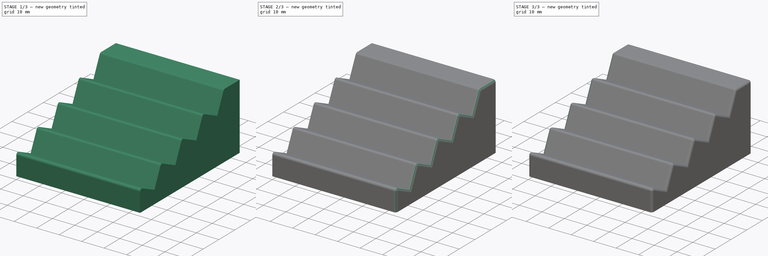
[diagram: build sequence overview — one tinted view per stage of 3, left to right]
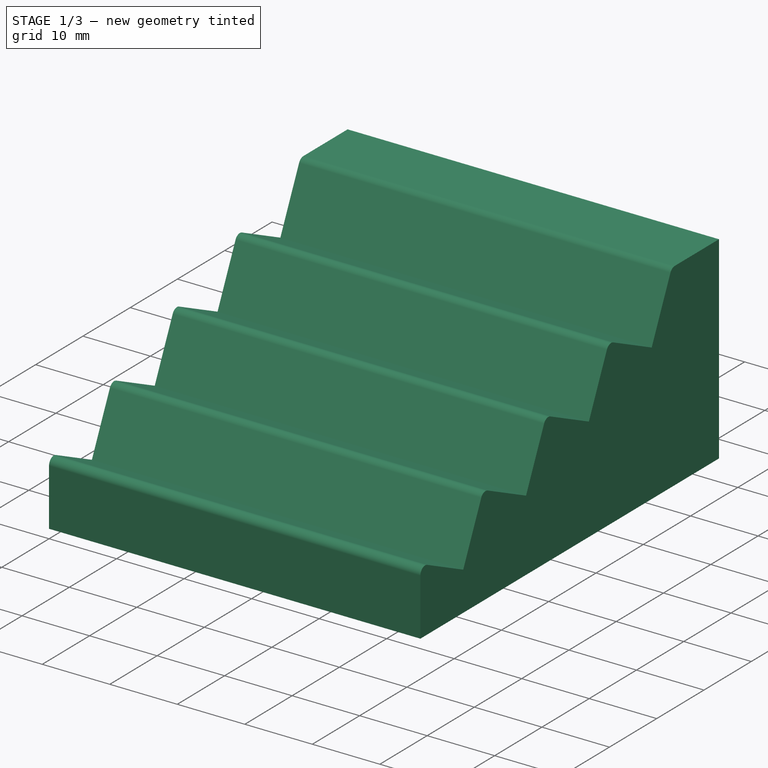
[diagram: stage 1 of 3 — iso view after this stage's code; geometry added in this stage tinted green]
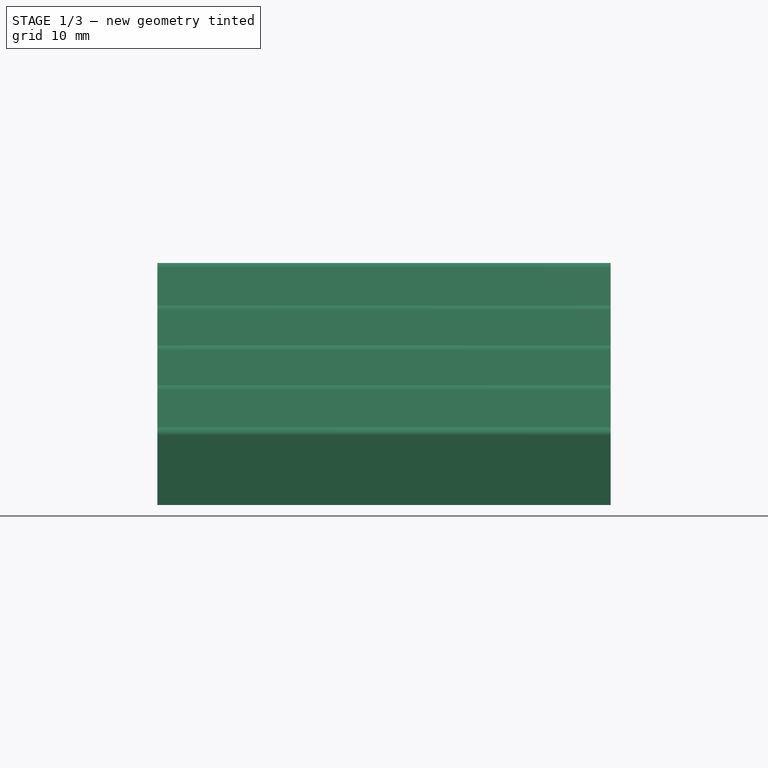
[diagram: stage 1 of 3 — front view after this stage's code; geometry added in this stage tinted green]
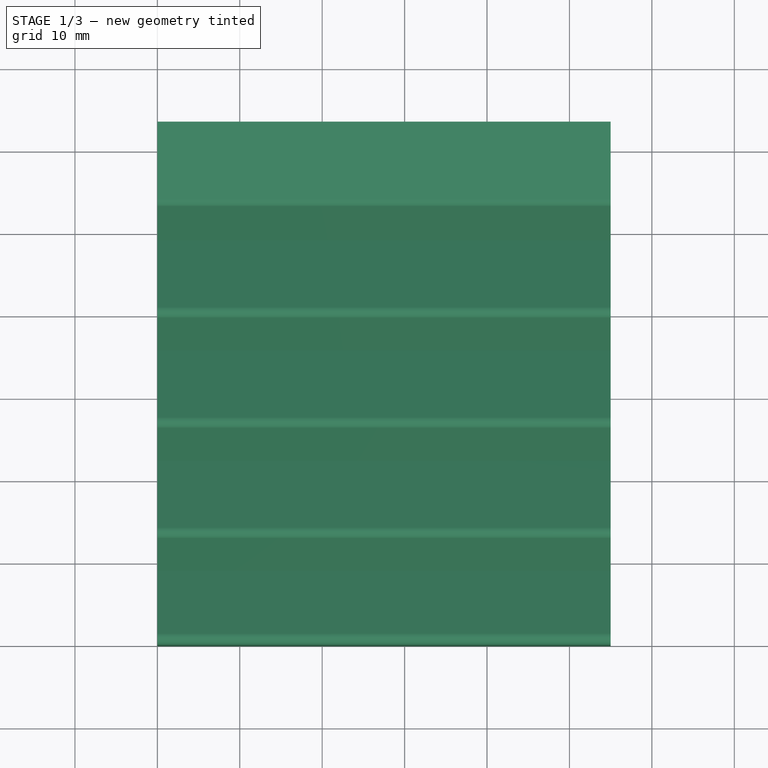
[diagram: stage 1 of 3 — top view after this stage's code; geometry added in this stage tinted green]
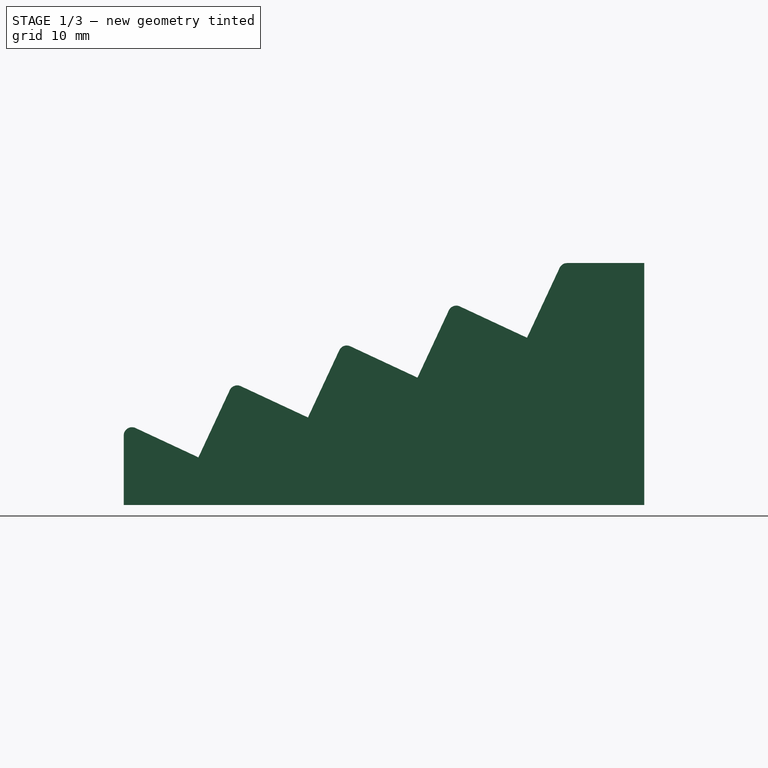
[diagram: stage 1 of 3 — right view after this stage's code; geometry added in this stage tinted green]
FCSTD DOCUMENT  (FreeCAD 1.1R)
Label: stand
License: All rights reserved
LicenseURL: https://en.wikipedia.org/wiki/All_rights_reserved
objects: PartDesign::Fillet×4, Sketcher::SketchObject×1, PartDesign::Pad×1, App::Point×1, PartDesign::Body×1
note: 18 computed .brp shape members not serialized (recipe doc carries the construction recipe); baked Part::Feature solids carry a one-line shape summary decoded from their .brp

FEATURE [Sketcher::SketchObject] Sketch
  ArcFitTolerance = 1e-06
  AttachmentSupport = -> [YZ_Plane]
  ExternalTypes = [0]
  FullyConstrained = true
  MakeInternals = false
  MapMode = 5
  Placement = pos=(0,0,0) rot=(0.57735,0.57735,0.57735;2.0944rad)
  sketch-geometry (12):
    g0: LineSegment StartX=0 StartY=0 StartZ=0 EndX=63.157 EndY=0 EndZ=0
    g1: LineSegment StartX=63.157 StartY=0 StartZ=0 EndX=63.157 EndY=29.3476 EndZ=0
    g2: LineSegment StartX=63.157 StartY=29.3476 StartZ=0 EndX=53.157 EndY=29.3476 EndZ=0
    g3: LineSegment StartX=53.157 StartY=29.3476 StartZ=0 EndX=48.9309 EndY=20.2845 EndZ=0
    g4: LineSegment StartX=48.9309 StartY=20.2845 StartZ=0 EndX=39.8678 EndY=24.5107 EndZ=0
    g5: LineSegment StartX=39.8678 StartY=24.5107 StartZ=0 EndX=35.6416 EndY=15.4476 EndZ=0
    g6: LineSegment StartX=35.6416 StartY=15.4476 StartZ=0 EndX=26.5785 EndY=19.6738 EndZ=0
    g7: LineSegment StartX=26.5785 StartY=19.6738 StartZ=0 EndX=22.3523 EndY=10.6107 EndZ=0
    g8: LineSegment StartX=22.3523 StartY=10.6107 StartZ=0 EndX=13.2893 EndY=14.8369 EndZ=0
    g9: LineSegment StartX=13.2893 StartY=14.8369 StartZ=0 EndX=9.06308 EndY=5.77382 EndZ=0
    g10: LineSegment StartX=9.06308 StartY=5.77382 StartZ=0 EndX=0 EndY=10 EndZ=0
    g11: LineSegment StartX=0 StartY=10 StartZ=0 EndX=0 EndY=0 EndZ=0
  constraints (36):
    c: Horizontal(g0)
    c: Coincident(g0,g1)
    c: Vertical(g1)
    c: Coincident(g1,g2)
    c: Horizontal(g2)
    c: Coincident(g2,g3)
    c: Coincident(g3,g4)
    c: Coincident(g4,g5)
    c: Coincident(g5,g6)
    c: Coincident(g6,g7)
    c: Coincident(g7,g8)
    c: Parallel(g8,g4)
    c: Coincident(g8,g9)
    c: Coincident(g9,g10)
    c: Coincident(g10,g11)
    c: Coincident(g11,g0)
    c: Perpendicular(g9,g10)
    c: Perpendicular(g7,g8)
    c: Perpendicular(g5,g6)
    c: Perpendicular(g4,g5)
    c: Perpendicular(g8,g9)
    c: Equal(g10,g9)
    c: Equal(g9,g8)
    c: Equal(g8,g7)
    c: Equal(g7,g6)
    c: Equal(g6,g5)
    c: Equal(g5,g4)
    c: Distance(g10,g10) = 10
    c: Perpendicular(g0,g11)
    c: Perpendicular(g4,g3)
    c: Equal(g3,g4)
    c: Equal(g2,g11)
    c: Angle(g11,g10) = 1.13446
    c: PointOnObject(g0,g-1)
    c: PointOnObject(g0,g-2)
    c: Distance(g2,g2) = 10
FEATURE [PartDesign::Pad] Pad
  Direction = (1,0,0)
  Length = 55
  Length2 = 10
  Placement = pos=(0,0,0) rot=(1,1,1;2.0944rad)
  Profile = -> Sketch
  ReferenceAxis = -> Sketch [N_Axis]
  Refine = true
  SideType = 0
  Suppressed = false
  Type = 0
  Type2 = 0
FEATURE [App::Point] Origin001  label="Origin"
  Role = Origin
FEATURE [PartDesign::Fillet] Fillet
  Base = -> Pad [Edge26,Edge20,Edge14,Edge8,Edge32]
  BaseFeature = -> Pad
  Placement = pos=(0,0,0) rot=(1,1,1;2.0944rad)
  Radius = 1
  Refine = true
  SupportTransform = false
  Suppressed = false
  UseAllEdges = false
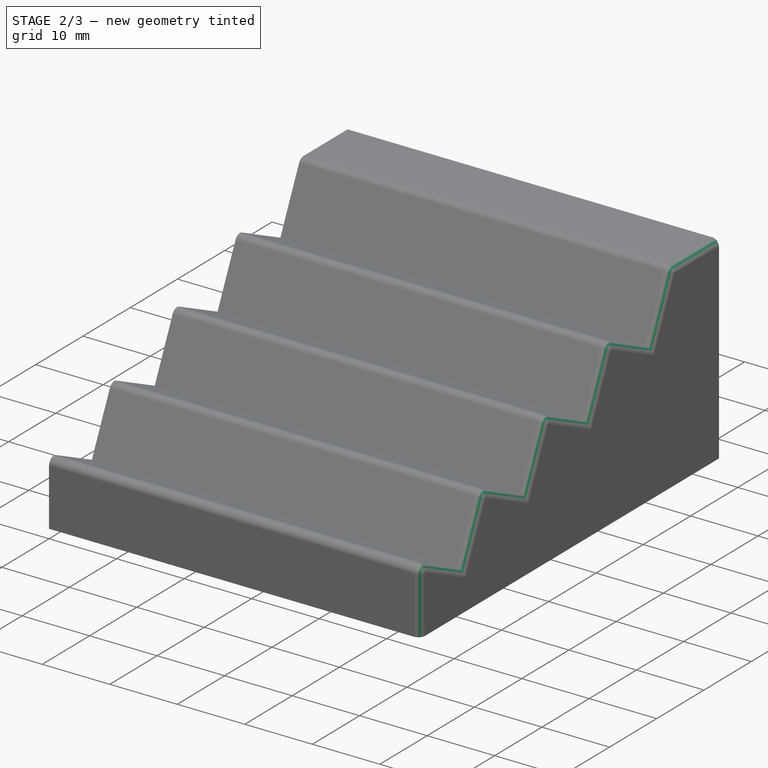
[diagram: stage 2 of 3 — iso view after this stage's code; geometry added in this stage tinted green]
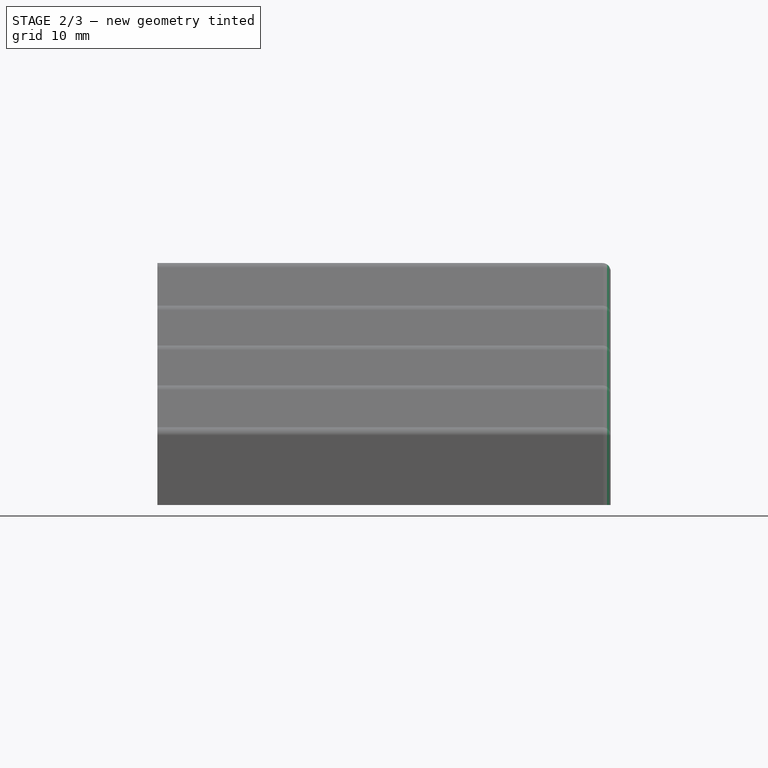
[diagram: stage 2 of 3 — front view after this stage's code; geometry added in this stage tinted green]
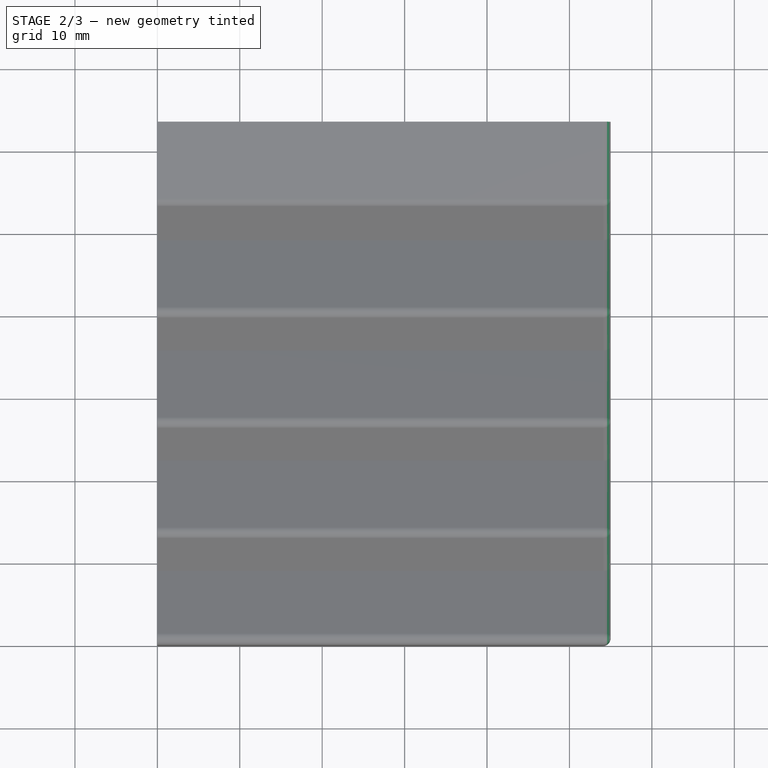
[diagram: stage 2 of 3 — top view after this stage's code; geometry added in this stage tinted green]
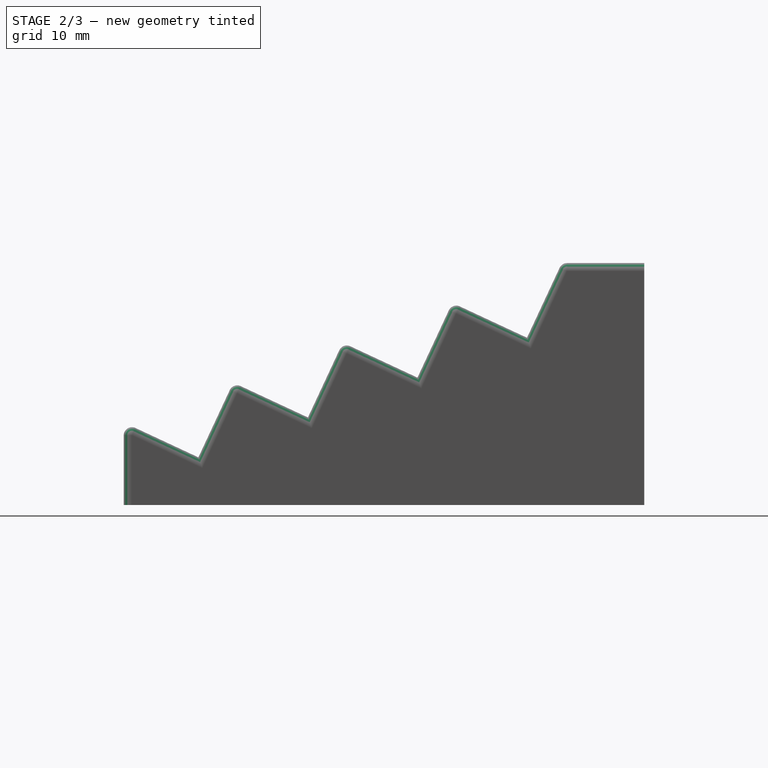
[diagram: stage 2 of 3 — right view after this stage's code; geometry added in this stage tinted green]
FEATURE [PartDesign::Fillet] Fillet001
  Base = -> Fillet [Edge38,Edge32,Edge33,Edge27,Edge25]
  BaseFeature = -> Fillet
  Placement = pos=(0,0,0) rot=(1,1,1;2.0944rad)
  Radius = 1
  Refine = true
  SupportTransform = false
  Suppressed = false
  UseAllEdges = false
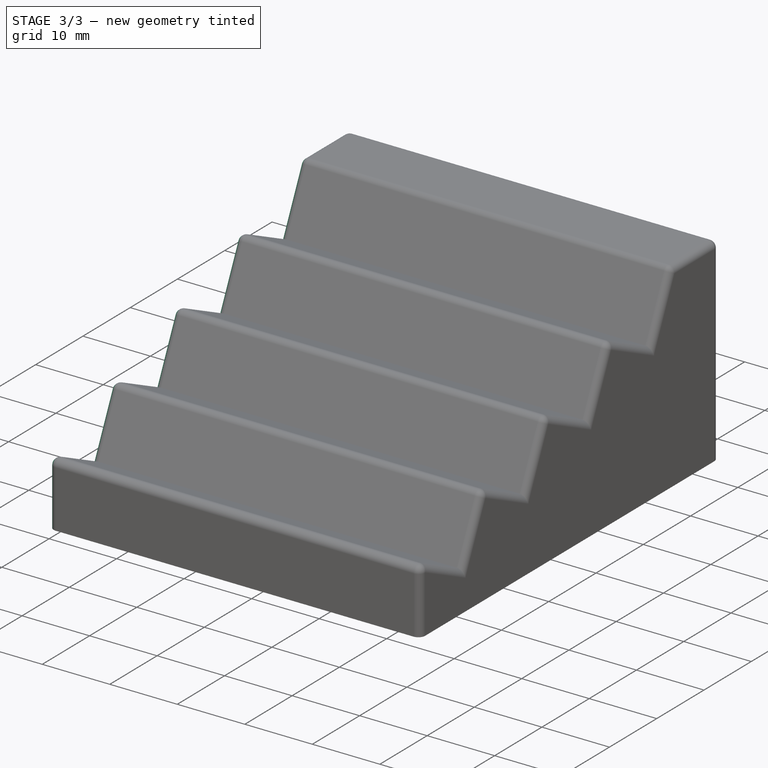
[diagram: stage 3 of 3 — iso view after this stage's code; geometry added in this stage tinted green]
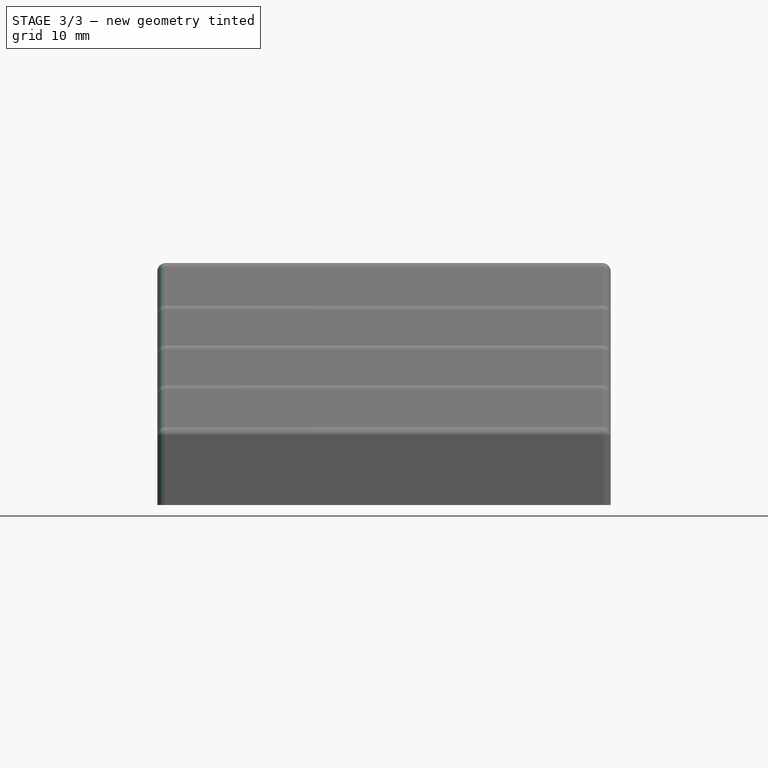
[diagram: stage 3 of 3 — front view after this stage's code; geometry added in this stage tinted green]
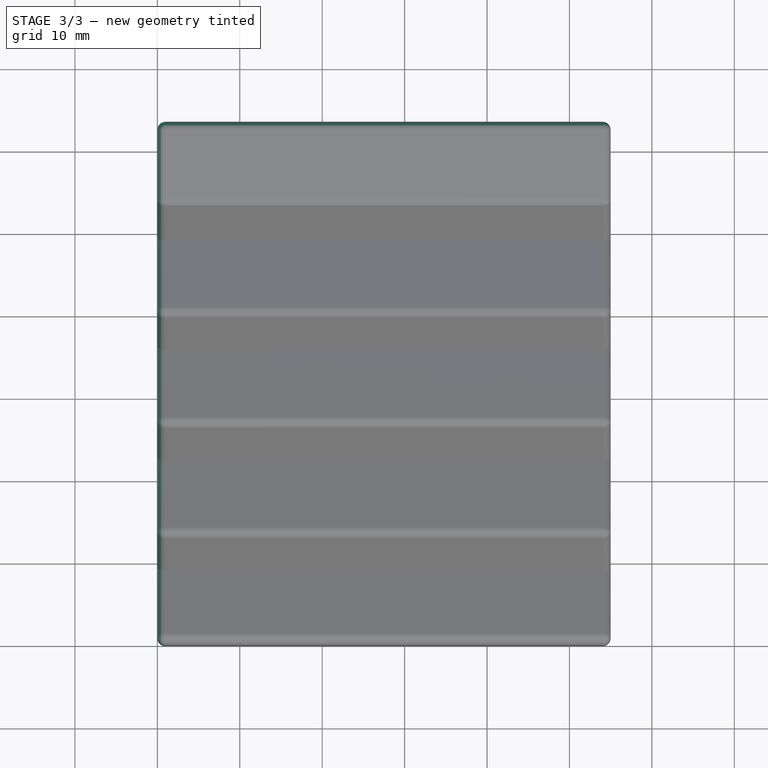
[diagram: stage 3 of 3 — top view after this stage's code; geometry added in this stage tinted green]
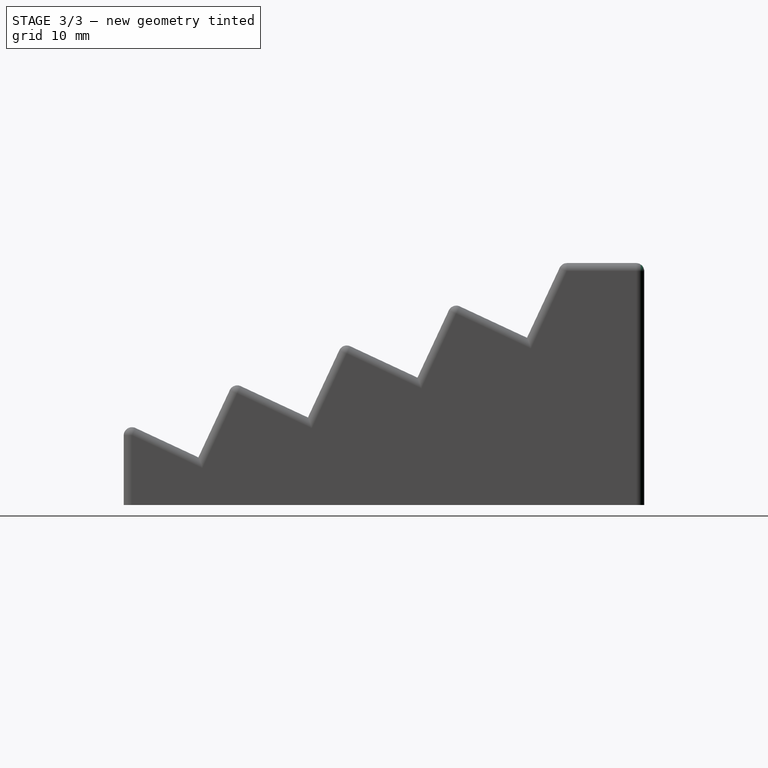
[diagram: stage 3 of 3 — right view after this stage's code; geometry added in this stage tinted green]
FEATURE [PartDesign::Fillet] Fillet002
  Base = -> Fillet001 [Edge14,Edge12,Edge20,Edge25,Edge19]
  BaseFeature = -> Fillet001
  Placement = pos=(0,0,0) rot=(1,1,1;2.0944rad)
  Radius = 1
  Refine = true
  SupportTransform = false
  Suppressed = false
  UseAllEdges = false
FEATURE [PartDesign::Fillet] Fillet003
  Base = -> Fillet002 [Edge4,Edge14,Edge15]
  BaseFeature = -> Fillet002
  Placement = pos=(0,0,0) rot=(1,1,1;2.0944rad)
  Radius = 1
  Refine = true
  SupportTransform = false
  Suppressed = false
  UseAllEdges = false
FEATURE [PartDesign::Body] Body  label="Stand"
  AllowCompound = false
  Group = -> [Sketch,Pad,Fillet,Fillet001,Fillet002,Fillet003]
  Origin = -> Origin
  Tip = -> Fillet003
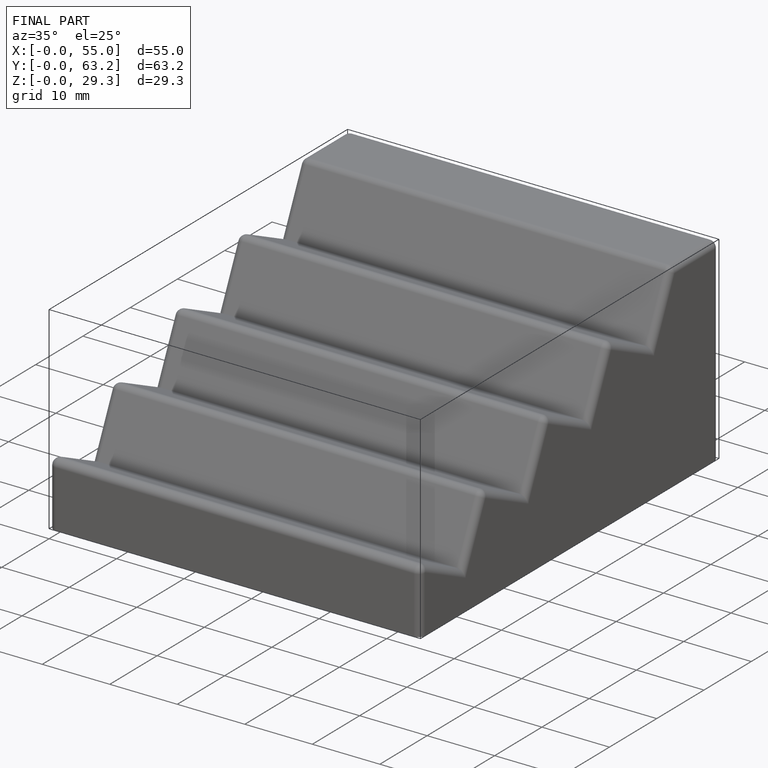
[diagram: finished part — iso view with bounding-box wireframe]
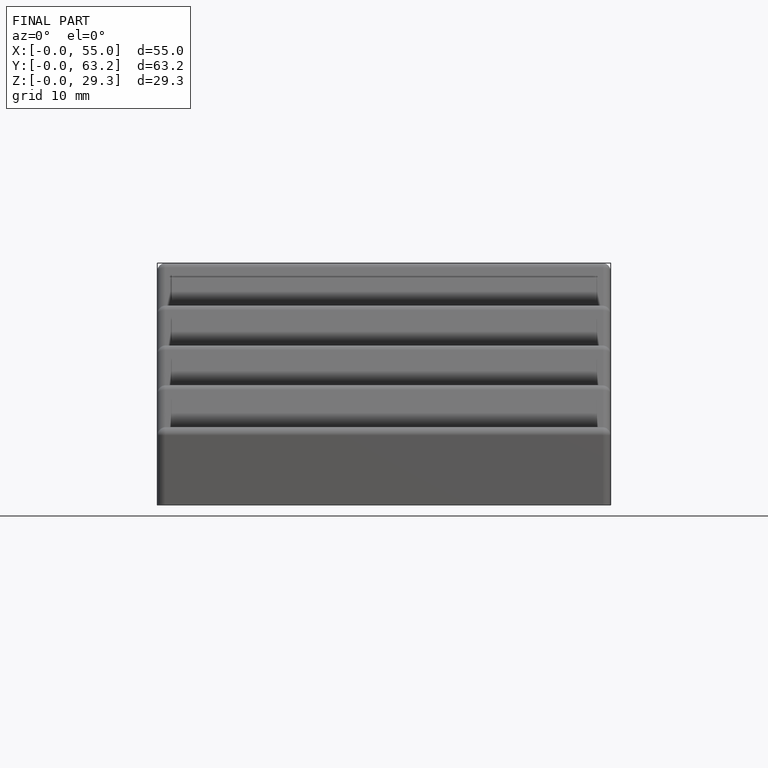
[diagram: finished part — front view with bounding-box wireframe]
